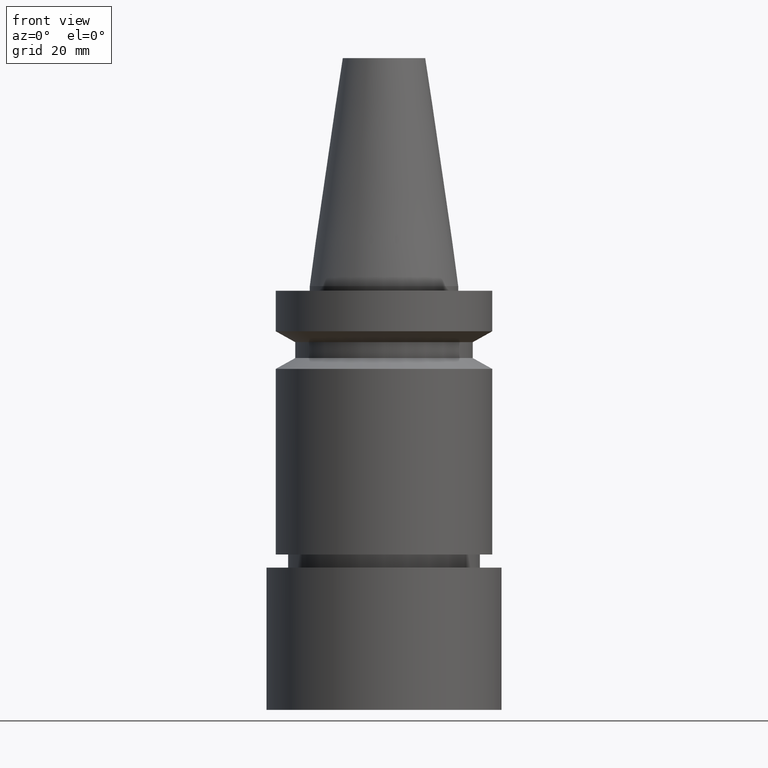
[diagram: clean part render]
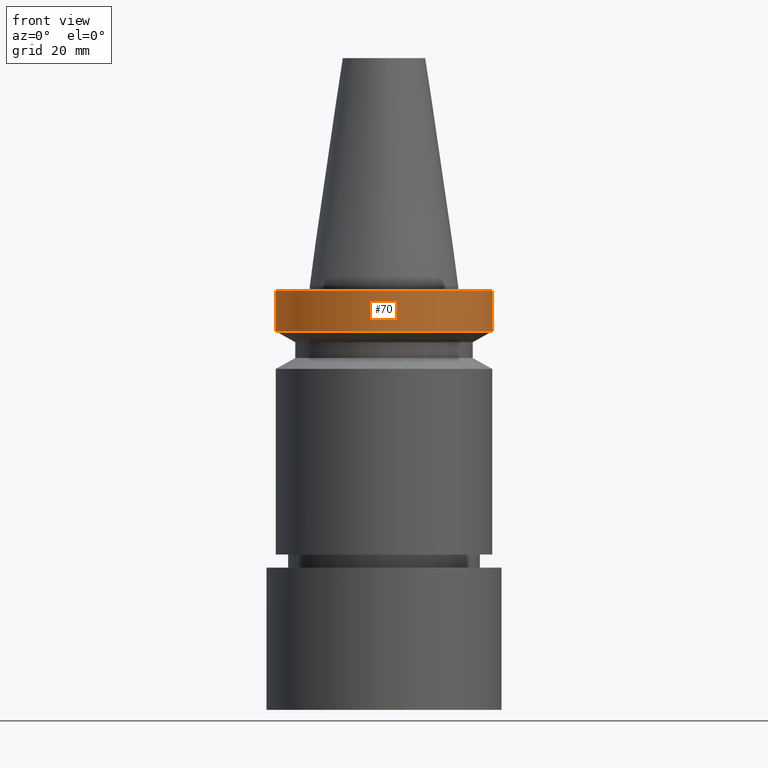
[diagram: same view with one face highlighted and labeled with its STEP entity id]
A machine part, front view. The second image highlights one B-rep face of the part: STEP entity #70.
In plain terms, the highlighted cylindrical surface (bore or boss wall) has radius 23 mm, axis along (0, 0, -1).
Its self-contained STEP definition (entity closure, byte-faithful):
#70=ADVANCED_FACE('Unnamed[1]',(#181,#182),#183,.T.);
#126=EDGE_CURVE('Unnamed[1]',#269,#269,#270,.T.);
#145=EDGE_CURVE('Unnamed[1]',#298,#298,#299,.T.);
#181=FACE_BOUND('',#333,.T.);
#182=FACE_BOUND('',#334,.T.);
#183=CYLINDRICAL_SURFACE('',#335,23.0);
#269=VERTEX_POINT('',#443);
#270=CIRCLE('',#444,23.0);
#298=VERTEX_POINT('',#480);
#299=CIRCLE('',#481,23.0);
#333=EDGE_LOOP('',(#506));
#334=EDGE_LOOP('',(#507));
#335=AXIS2_PLACEMENT_3D('',#508,#509,#510);
#443=CARTESIAN_POINT('',(6.12323399573674E-017,23.0,-0.999999999999997));
#444=AXIS2_PLACEMENT_3D('',#607,#608,#609);
#480=CARTESIAN_POINT('',(5.87830463590729E-016,23.0,-9.59999999999999));
#481=AXIS2_PLACEMENT_3D('',#639,#640,#641);
#506=ORIENTED_EDGE('',*,*,#145,.F.);
#507=ORIENTED_EDGE('',*,*,#126,.T.);
#508=CARTESIAN_POINT('',(3.24531401774048E-016,6.49062803548097E-016,-5.3));
#509=DIRECTION('',(6.12323399573677E-017,1.22464679914735E-016,-1.0));
#510=DIRECTION('',(-1.23259516440783E-032,1.0,1.22464679914735E-016));
#607=CARTESIAN_POINT('',(6.12323399573677E-017,1.22464679914735E-016,-1.0));
#608=DIRECTION('',(6.12323399573677E-017,1.22464679914735E-016,-1.0));
#609=DIRECTION('',(-1.23259516440783E-032,1.0,1.22464679914735E-016));
#639=CARTESIAN_POINT('',(5.87830463590729E-016,1.17566092718146E-015,-9.59999999999999));
#640=DIRECTION('',(6.12323399573677E-017,1.22464679914735E-016,-1.0));
#641=DIRECTION('',(-1.23259516440783E-032,1.0,1.22464679914735E-016));